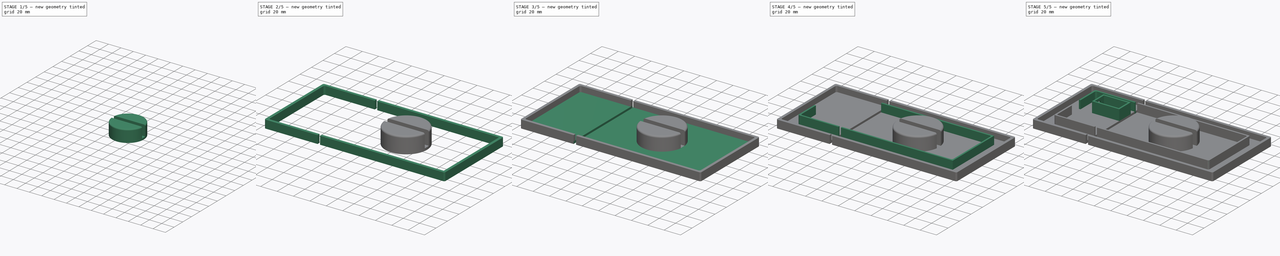
[diagram: build sequence overview — one tinted view per stage of 5, left to right]
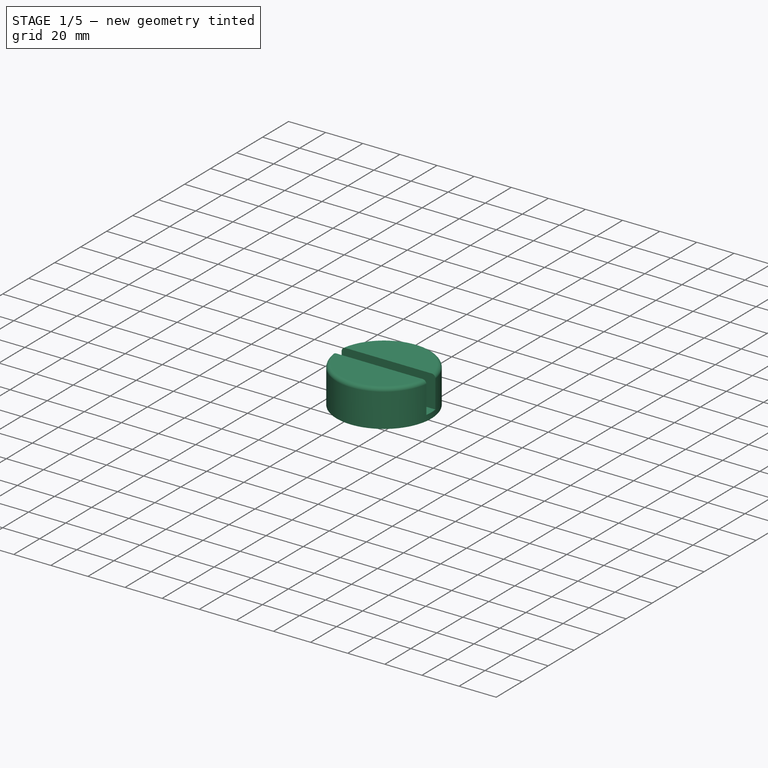
[diagram: stage 1 of 5 — iso view after this stage's code; geometry added in this stage tinted green]
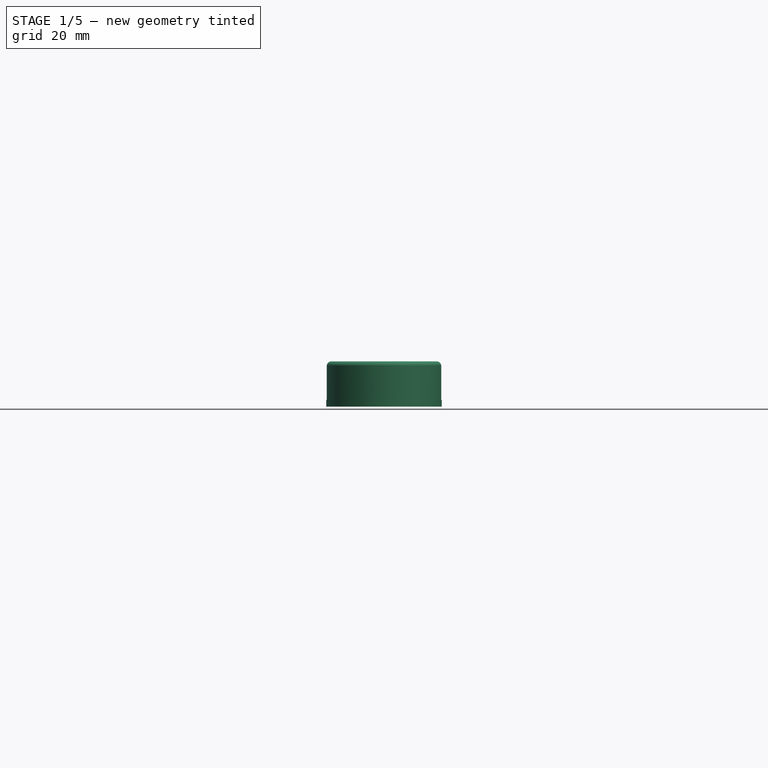
[diagram: stage 1 of 5 — front view after this stage's code; geometry added in this stage tinted green]
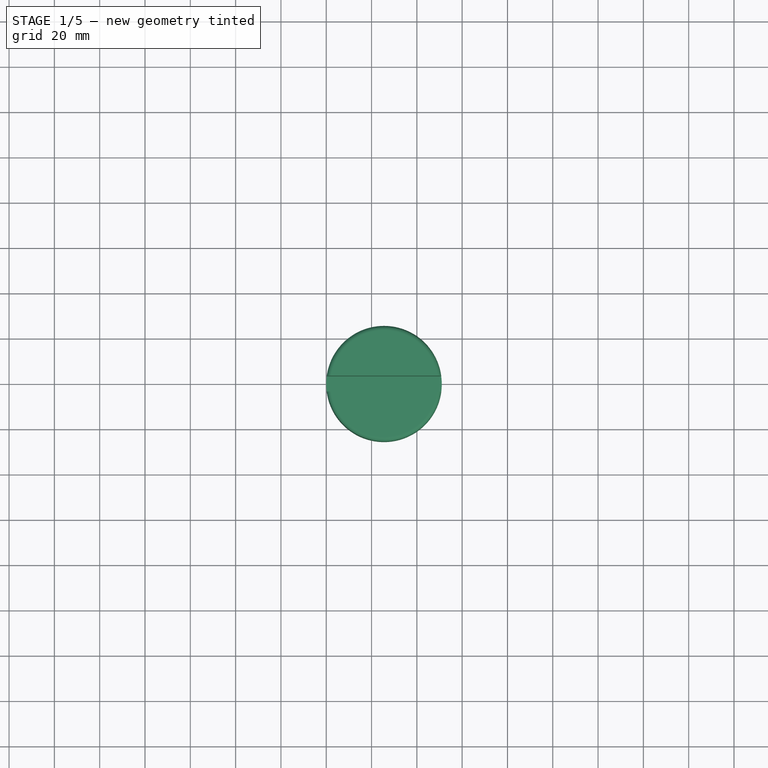
[diagram: stage 1 of 5 — top view after this stage's code; geometry added in this stage tinted green]
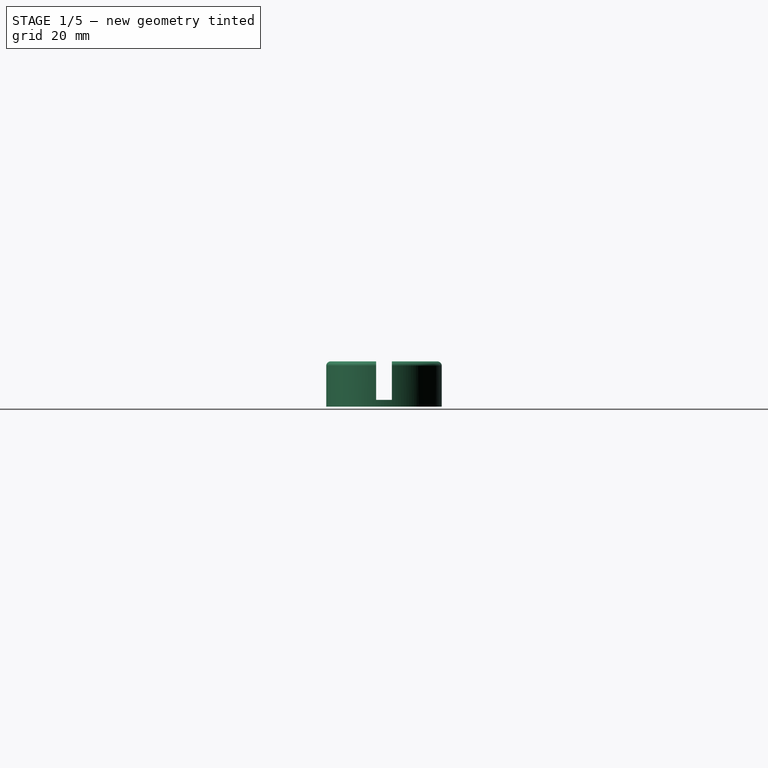
[diagram: stage 1 of 5 — right view after this stage's code; geometry added in this stage tinted green]
FCSTD DOCUMENT  (FreeCAD 0.19R24276 (Git))
Label: Rancilio_Silvia_Deckel_final
License: All rights reserved
LicenseURL: http://en.wikipedia.org/wiki/All_rights_reserved
objects: Part::Fillet×20, Sketcher::SketchObject×11, PartDesign::Pad×11, PartDesign::Body×11, Part::FeaturePython×10, Part::Cut×7, Part::Plane×3, App::DocumentObjectGroup×3, Part::Cylinder×1
note: 85 computed .brp shape members not serialized (recipe doc carries the construction recipe); baked Part::Feature solids carry a one-line shape summary decoded from their .brp

FEATURE [App::DocumentObjectGroup] GrExplode_Slice002  label="Exploded Slice002"
  Group = -> [Slice002_child0,Slice002_child1,Slice002_child2]
FEATURE [Sketcher::SketchObject] Sketch004
  FullyConstrained = false
  MapMode = 5
  Support = -> [XY_Plane006]
  sketch-geometry (4):
    g0: LineSegment StartX=-62.2277 StartY=3.5 StartZ=0 EndX=78.4721 EndY=3.5 EndZ=0
    g1: LineSegment StartX=78.4721 StartY=3.5 StartZ=0 EndX=78.4721 EndY=-3.5 EndZ=0
    g2: LineSegment StartX=78.4721 StartY=-3.5 StartZ=0 EndX=-62.2277 EndY=-3.5 EndZ=0
    g3: LineSegment StartX=-62.2277 StartY=-3.5 StartZ=0 EndX=-62.2277 EndY=3.5 EndZ=0
  constraints (9):
    c: Coincident(g0,g1)
    c: Coincident(g1,g2)
    c: Coincident(g2,g3)
    c: Coincident(g3,g0)
    c: Horizontal(g0)
    c: Horizontal(g2)
    c: Vertical(g1)
    c: Symmetric(g2,g0,g-1)
    c: DistanceY(g3,g3) = 7
FEATURE [Sketcher::SketchObject] Sketch005
  FullyConstrained = true
  MapMode = 5
  Support = -> [XY_Plane005]
  sketch-geometry (1):
    g0: Circle CenterX=0 CenterY=0 CenterZ=0 NormalX=0 NormalY=0 NormalZ=1 AngleXU=0 Radius=22
  constraints (2):
    c: Coincident(g0,g-1)
    c: Radius(g0) = 22
FEATURE [Sketcher::SketchObject] Sketch006
  FullyConstrained = true
  MapMode = 5
  Support = -> [XY_Plane007]
  sketch-geometry (4):
    g0: LineSegment StartX=-50 StartY=5 StartZ=0 EndX=50 EndY=5 EndZ=0
    g1: LineSegment StartX=50 StartY=5 StartZ=0 EndX=50 EndY=-5 EndZ=0
    g2: LineSegment StartX=50 StartY=-5 StartZ=0 EndX=-50 EndY=-5 EndZ=0
    g3: LineSegment StartX=-50 StartY=-5 StartZ=0 EndX=-50 EndY=5 EndZ=0
  constraints (10):
    c: Coincident(g0,g1)
    c: Coincident(g1,g2)
    c: Coincident(g2,g3)
    c: Coincident(g3,g0)
    c: Horizontal(g2)
    c: Vertical(g1)
    c: Symmetric(g0,g0,g-2)
    c: Symmetric(g0,g2,g-1)
    c: DistanceY(g3,g3) = 10
    c: DistanceX(g0,g0) = 100
FEATURE [Sketcher::SketchObject] Sketch007
  FullyConstrained = true
  MapMode = 5
  Support = -> [XY_Plane004]
  sketch-geometry (1):
    g0: Circle CenterX=0 CenterY=0 CenterZ=0 NormalX=0 NormalY=0 NormalZ=1 AngleXU=0 Radius=25.5
  constraints (2):
    c: Coincident(g0,g-1)
    c: Radius(g0) = 25.5
FEATURE [PartDesign::Pad] Pad004
  Direction = (1,1,1)
  Length = 20
  Length2 = 100
  Profile = -> Sketch007
  Type = 0
FEATURE [PartDesign::Pad] Pad005
  Direction = (1,1,1)
  Length = 20
  Length2 = 100
  Profile = -> Sketch006
  Type = 0
FEATURE [PartDesign::Pad] Pad006
  Direction = (1,1,1)
  Length = 17
  Length2 = 100
  Profile = -> Sketch005
  Type = 0
FEATURE [PartDesign::Body] Body004
  Group = -> [Sketch006,Pad005]
  Origin = -> Origin006
  Tip = -> Pad005
FEATURE [PartDesign::Body] Body005
  Group = -> [Sketch005,Pad006]
  Origin = -> Origin004
  Tip = -> Pad006
FEATURE [Part::Cut] Cut001
  Base = -> Body005
  Tool = -> Body004
FEATURE [PartDesign::Body] Body006
  Group = -> [Sketch007,Pad004]
  Origin = -> Origin007
  Tip = -> Pad004
FEATURE [Part::Cut] Cut002
  Base = -> Body006
  Tool = -> Cut001
FEATURE [PartDesign::Pad] Pad007
  Direction = (1,1,1)
  Length = 17
  Length2 = 100
  Profile = -> Sketch004
  Type = 0
FEATURE [PartDesign::Body] Body007
  Group = -> [Sketch004,Pad007]
  Origin = -> Origin005
  Placement = pos=(0,0,3) rot=(0,0,1;0rad)
  Tip = -> Pad007
FEATURE [Part::Cut] Cut003
  Base = -> Cut002
  Placement = pos=(25.5,0,0) rot=(0,0,1;0rad)
  Tool = -> Body007
FEATURE [Part::Fillet] Fillet014
  Base = -> Cut003
  Edges = 1 edges r=2: [Edge5]
FEATURE [Part::Fillet] Fillet015
  Base = -> Fillet014
  Edges = 1 edges r=2: [Edge7]
FEATURE [Part::Fillet] Fillet016
  Base = -> Fillet015
  Edges = 1 edges r=2: [Edge27]
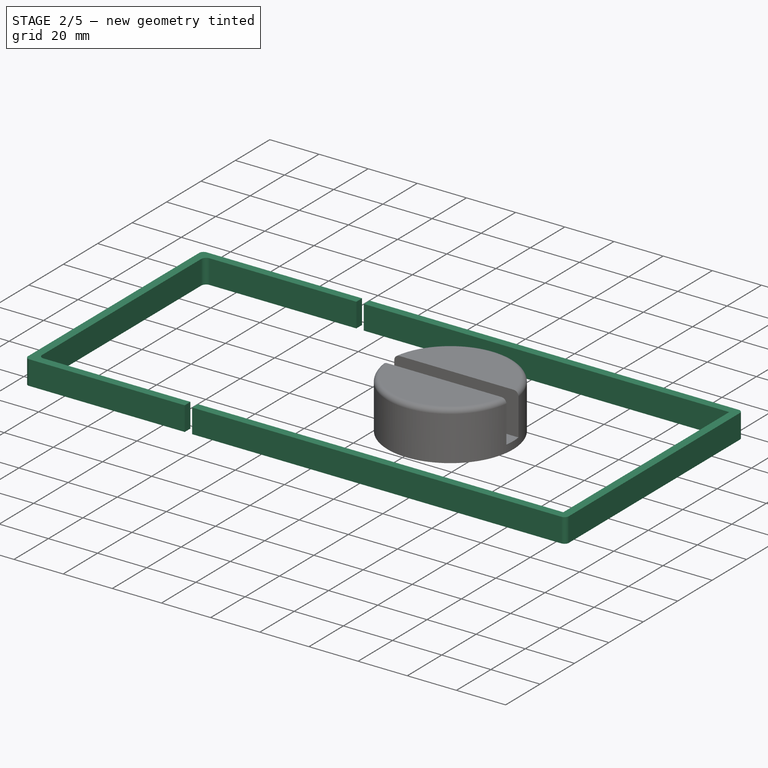
[diagram: stage 2 of 5 — iso view after this stage's code; geometry added in this stage tinted green]
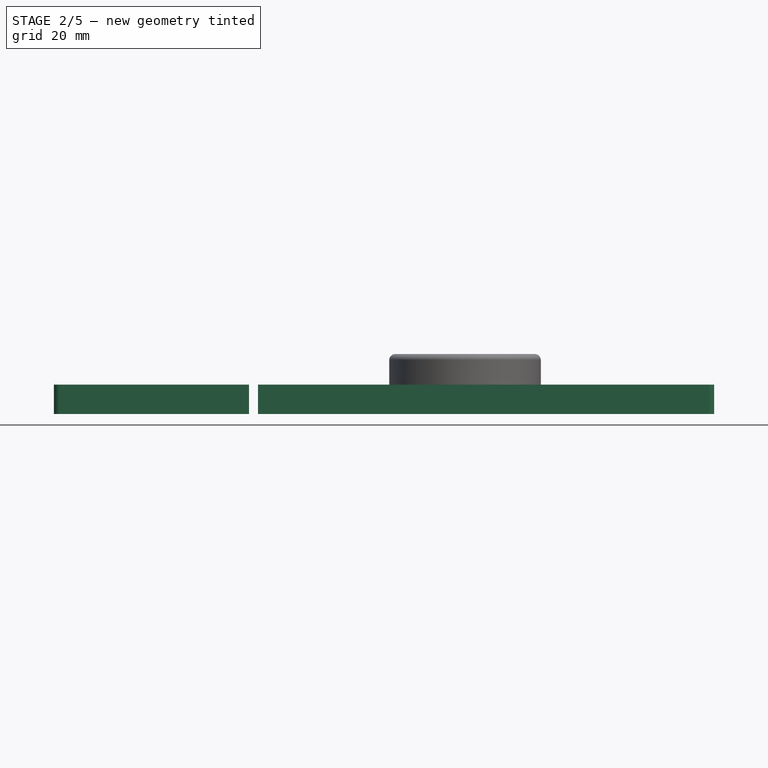
[diagram: stage 2 of 5 — front view after this stage's code; geometry added in this stage tinted green]
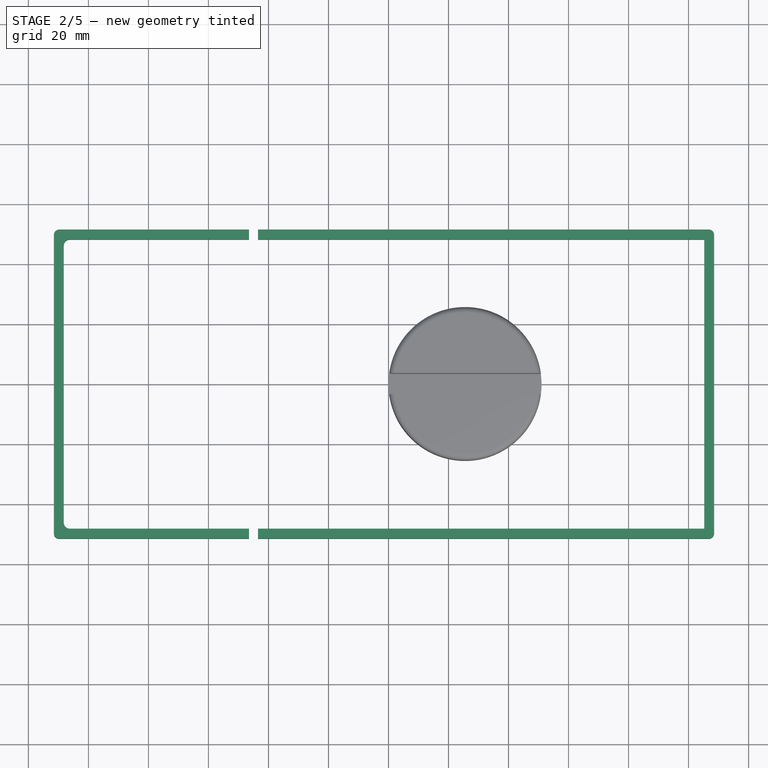
[diagram: stage 2 of 5 — top view after this stage's code; geometry added in this stage tinted green]
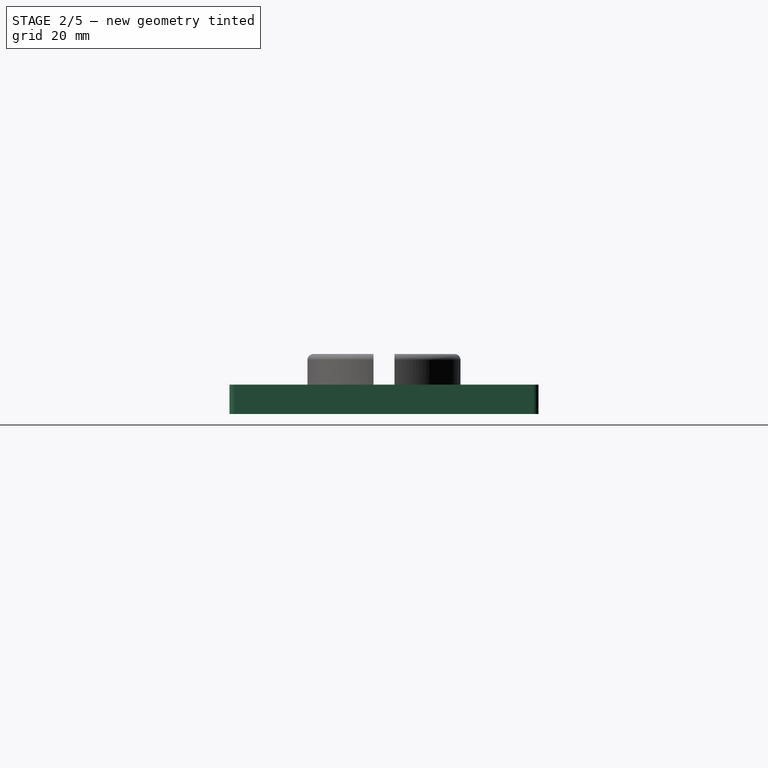
[diagram: stage 2 of 5 — right view after this stage's code; geometry added in this stage tinted green]
FEATURE [PartDesign::Body] Body
  Group = -> [Sketch,Pad]
  Origin = -> Origin
  Tip = -> Pad
FEATURE [Sketcher::SketchObject] Sketch001
  FullyConstrained = true
  MapMode = 5
  Support = -> [XY_Plane001]
  sketch-geometry (8):
    g0: LineSegment StartX=-108.5 StartY=51.5 StartZ=0 EndX=108.5 EndY=51.5 EndZ=0
    g1: LineSegment StartX=108.5 StartY=51.5 StartZ=0 EndX=108.5 EndY=-51.5 EndZ=0
    g2: LineSegment StartX=108.5 StartY=-51.5 StartZ=0 EndX=-108.5 EndY=-51.5 EndZ=0
    g3: LineSegment StartX=-108.5 StartY=-51.5 StartZ=0 EndX=-108.5 EndY=51.5 EndZ=0
    g4: LineSegment StartX=-105.2 StartY=48.2 StartZ=0 EndX=105.2 EndY=48.2 EndZ=0
    g5: LineSegment StartX=105.2 StartY=48.2 StartZ=0 EndX=105.2 EndY=-48.2 EndZ=0
    g6: LineSegment StartX=105.2 StartY=-48.2 StartZ=0 EndX=-105.2 EndY=-48.2 EndZ=0
    g7: LineSegment StartX=-105.2 StartY=-48.2 StartZ=0 EndX=-105.2 EndY=48.2 EndZ=0
  constraints (20):
    c: Coincident(g0,g1)
    c: Coincident(g1,g2)
    c: Coincident(g2,g3)
    c: Coincident(g3,g0)
    c: Horizontal(g2)
    c: Vertical(g3)
    c: Symmetric(g0,g0,g-2)
    c: Symmetric(g0,g1,g-1)
    c: DistanceY(g1,g1) = 103
    c: DistanceX(g0,g0) = 217
    c: Coincident(g4,g5)
    c: Coincident(g5,g6)
    c: Coincident(g6,g7)
    c: Coincident(g7,g4)
    c: Horizontal(g6)
    c: Vertical(g7)
    c: Symmetric(g4,g4,g-2)
    c: Symmetric(g5,g4,g-1)
    c: DistanceX(g4,g4) = 210.4
    c: DistanceY(g5,g5) = 96.4
FEATURE [PartDesign::Pad] Pad001
  Direction = (1,1,1)
  Length = 9.8
  Length2 = 100
  Profile = -> Sketch001
  Type = 0
FEATURE [Part::FeaturePython] Slice001  # WARN: FeaturePython — macro-defined, semantics opaque (R4)
  Base = -> Body001
  Mode = 1
  Tolerance = 0
  Tools = -> [Plane001]
FEATURE [Part::FeaturePython] Slice001_child0  label="Slice001.0"  # WARN: FeaturePython — macro-defined, semantics opaque (R4)
  Base = -> Slice001
  FilterType = 1
  Invert = false
  OverrideMaxVal = 0
  Placement = pos=(-3,0,0) rot=(0,0,1;0rad)
  WindowFrom = 80
  WindowTo = 100
  items = 0
FEATURE [Part::FeaturePython] Slice001_child1  label="Slice001.1"  # WARN: FeaturePython — macro-defined, semantics opaque (R4)
  Base = -> Slice001
  FilterType = 1
  Invert = false
  OverrideMaxVal = 0
  WindowFrom = 80
  WindowTo = 100
  items = 1
FEATURE [Part::Fillet] Fillet008
  Base = -> Slice001_child1
  Edges = 2 edges r=1.8: [Edge2,Edge12]
FEATURE [Part::Fillet] Fillet010
  Base = -> Slice001_child0
  Edges = 2 edges r=1.8: [Edge4,Edge20]
FEATURE [Part::Fillet] Fillet013
  Base = -> Fillet010
  Edges = 2 edges r=2: [Edge29,Edge30]
FEATURE [Part::Fillet] Fillet017
  Base = -> Fillet016
  Edges = 1 edges r=2: [Edge24]
FEATURE [Part::Fillet] Fillet018
  Base = -> Fillet017
  Edges = 1 edges r=2: [Edge27]
FEATURE [Part::Fillet] Fillet019
  Base = -> Fillet018
  Edges = 1 edges r=2: [Edge30]
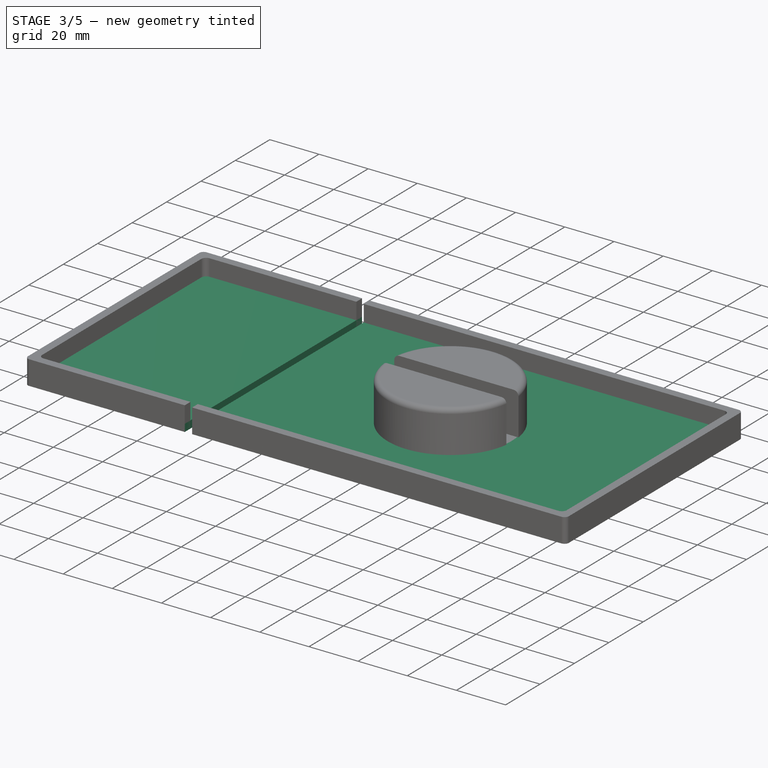
[diagram: stage 3 of 5 — iso view after this stage's code; geometry added in this stage tinted green]
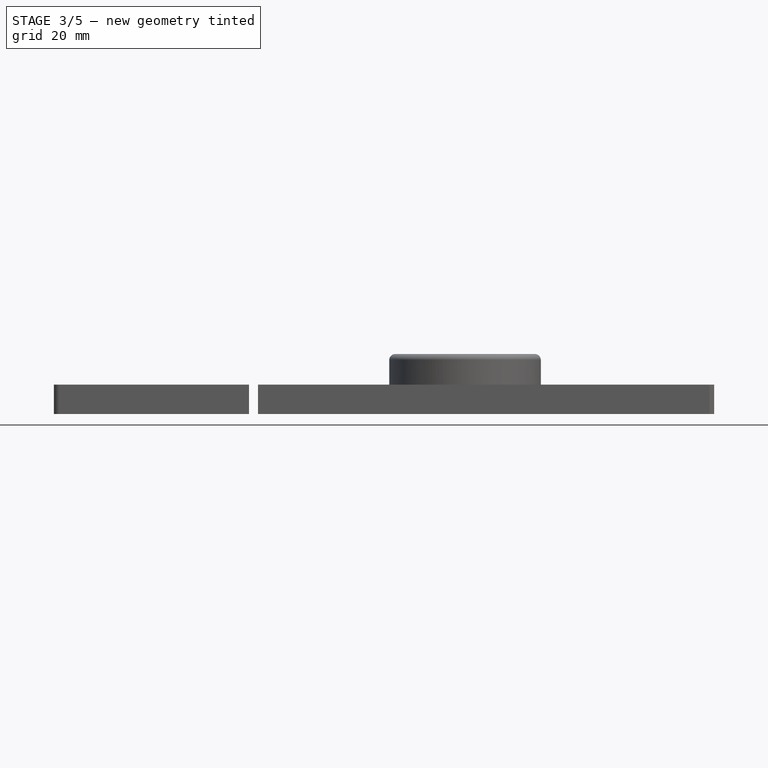
[diagram: stage 3 of 5 — front view after this stage's code; geometry added in this stage tinted green]
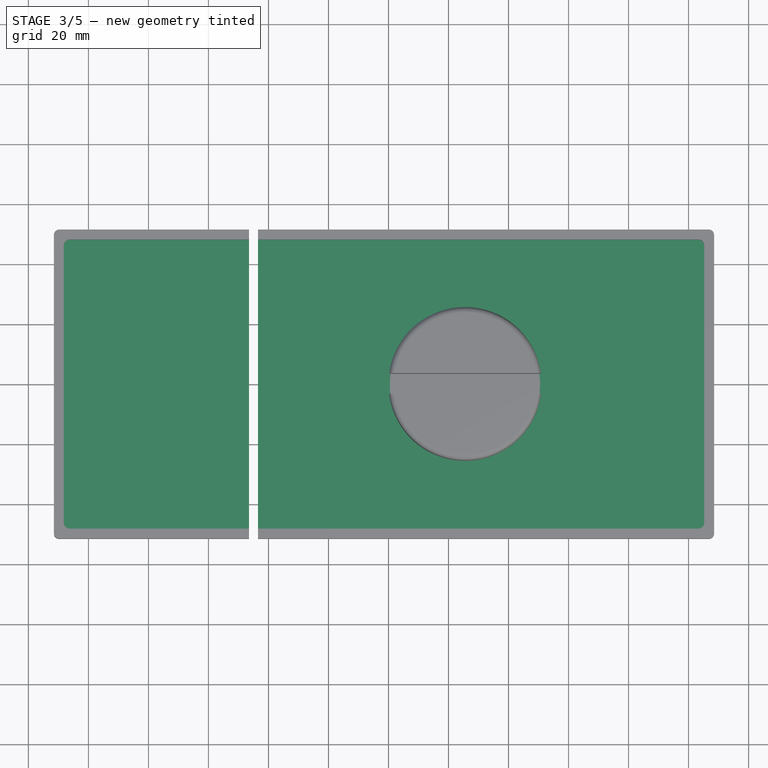
[diagram: stage 3 of 5 — top view after this stage's code; geometry added in this stage tinted green]
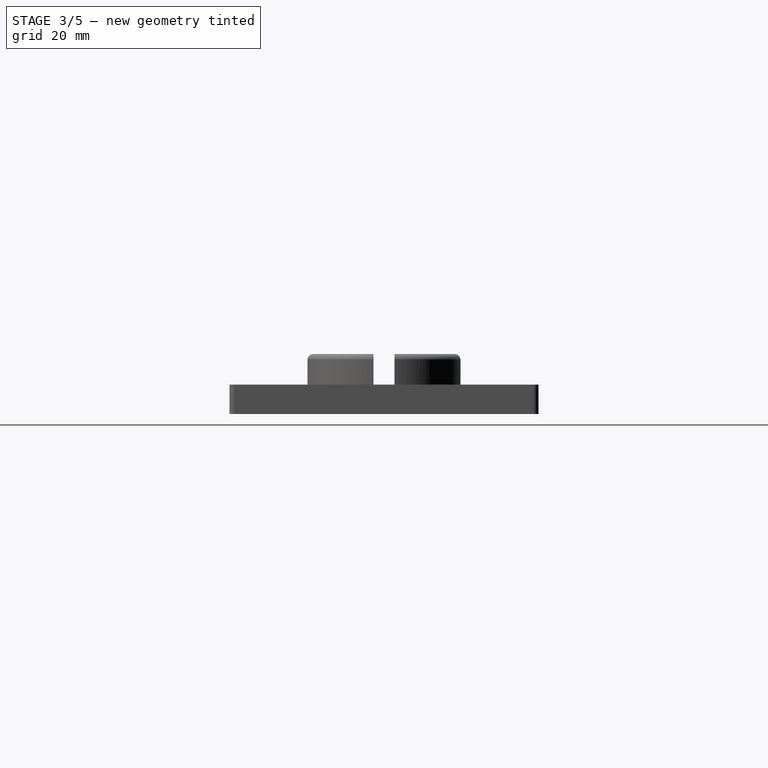
[diagram: stage 3 of 5 — right view after this stage's code; geometry added in this stage tinted green]
FEATURE [Sketcher::SketchObject] Sketch
  FullyConstrained = true
  MapMode = 5
  Support = -> [XY_Plane]
  sketch-geometry (4):
    g0: LineSegment StartX=-107.5 StartY=51.5 StartZ=0 EndX=107.5 EndY=51.5 EndZ=0
    g1: LineSegment StartX=107.5 StartY=51.5 StartZ=0 EndX=107.5 EndY=-51.5 EndZ=0
    g2: LineSegment StartX=107.5 StartY=-51.5 StartZ=0 EndX=-107.5 EndY=-51.5 EndZ=0
    g3: LineSegment StartX=-107.5 StartY=-51.5 StartZ=0 EndX=-107.5 EndY=51.5 EndZ=0
  constraints (10):
    c: Coincident(g0,g1)
    c: Coincident(g1,g2)
    c: Coincident(g2,g3)
    c: Coincident(g3,g0)
    c: Horizontal(g2)
    c: Vertical(g3)
    c: Symmetric(g0,g0,g-2)
    c: Symmetric(g0,g1,g-1)
    c: DistanceY(g1,g1) = 103
    c: DistanceX(g0,g0) = 215
FEATURE [PartDesign::Pad] Pad
  Direction = (1,1,1)
  Length = 3
  Length2 = 100
  Profile = -> Sketch
  Type = 0
FEATURE [Part::Plane] Plane  label="Ebene"
  AttacherType = Attacher::AttachEngine3D
  Length = 100
  Placement = pos=(-43.5,-71,39) rot=(0,1,0;1.5708rad)
  Width = 140
FEATURE [Part::Plane] Plane001  label="Ebene001"
  AttacherType = Attacher::AttachEngine3D
  Length = 100
  Placement = pos=(-43.5,-71,39) rot=(0,1,0;1.5708rad)
  Width = 140
FEATURE [Part::Plane] Plane002  label="Ebene002"
  AttacherType = Attacher::AttachEngine3D
  Length = 100
  Placement = pos=(-43.5,-71,39) rot=(0,1,0;1.5708rad)
  Width = 140
FEATURE [Part::FeaturePython] Slice  # WARN: FeaturePython — macro-defined, semantics opaque (R4)
  Base = -> Body
  Mode = 1
  Tolerance = 0
  Tools = -> [Plane]
FEATURE [Part::FeaturePython] Slice_child0  label="Slice.0"  # WARN: FeaturePython — macro-defined, semantics opaque (R4)
  Base = -> Slice
  FilterType = 1
  Invert = false
  OverrideMaxVal = 0
  Placement = pos=(-3,0,0) rot=(0,0,1;0rad)
  WindowFrom = 80
  WindowTo = 100
  items = 0
FEATURE [Part::FeaturePython] Slice_child1  label="Slice.1"  # WARN: FeaturePython — macro-defined, semantics opaque (R4)
  Base = -> Slice
  FilterType = 1
  Invert = false
  OverrideMaxVal = 0
  WindowFrom = 80
  WindowTo = 100
  items = 1
FEATURE [Sketcher::SketchObject] Sketch008
  FullyConstrained = false
  MapMode = 5
  Support = -> [XY_Plane008]
  sketch-geometry (1):
    g0: Circle CenterX=25.4804 CenterY=0 CenterZ=0 NormalX=0 NormalY=0 NormalZ=1 AngleXU=0 Radius=25
  constraints (2):
    c: PointOnObject(g0,g-1)
    c: Radius(g0) = 25
FEATURE [PartDesign::Pad] Pad008
  Direction = (1,1,1)
  Length = 10
  Length2 = 100
  Profile = -> Sketch008
  Type = 0
FEATURE [PartDesign::Body] Body008
  Group = -> [Sketch008,Pad008]
  Origin = -> Origin008
  Placement = pos=(0,0,-3) rot=(0,0,1;0rad)
  Tip = -> Pad008
FEATURE [Part::Cut] Cut004
  Base = -> Slice_child1
  Tool = -> Body008
FEATURE [Part::Fillet] Fillet009
  Base = -> Cut004
  Edges = 2 edges r=1.8: [Edge2,Edge9]
FEATURE [Part::Fillet] Fillet011
  Base = -> Slice_child0
  Edges = 2 edges r=1.8: [Edge4,Edge12]
FEATURE [Part::Fillet] Fillet012
  Base = -> Fillet008
  Edges = 2 edges r=2: [Edge29,Edge30]
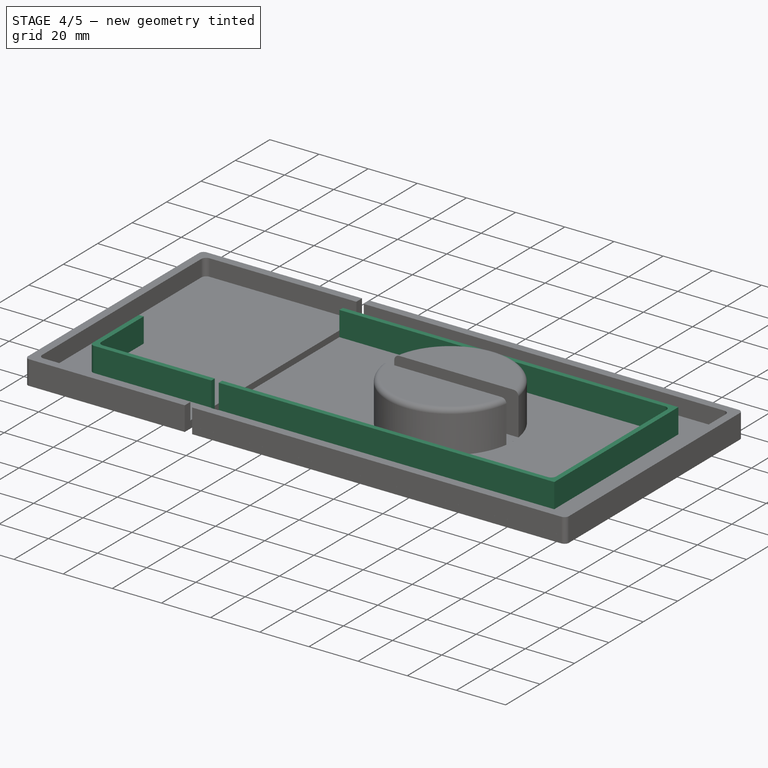
[diagram: stage 4 of 5 — iso view after this stage's code; geometry added in this stage tinted green]
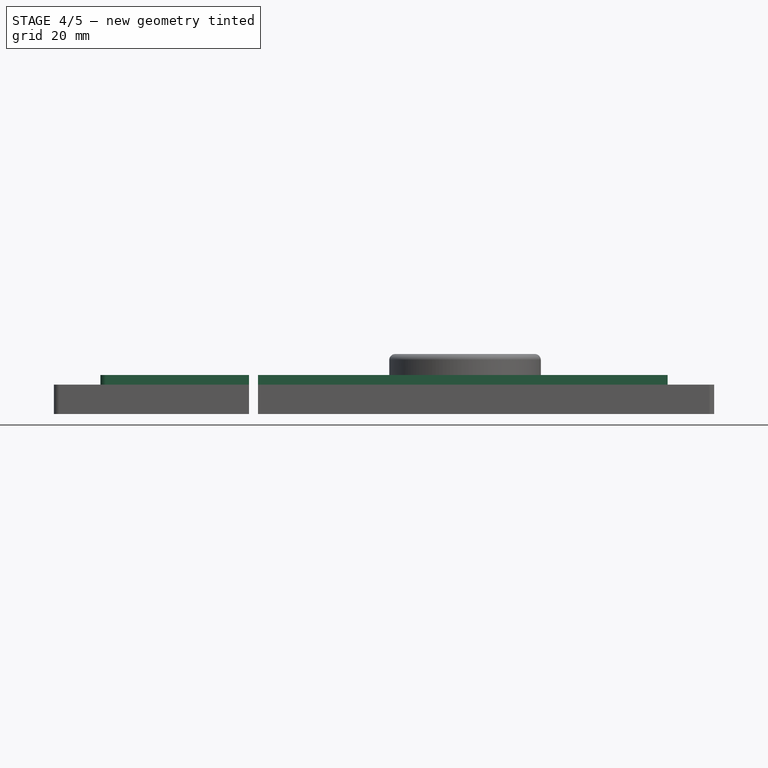
[diagram: stage 4 of 5 — front view after this stage's code; geometry added in this stage tinted green]
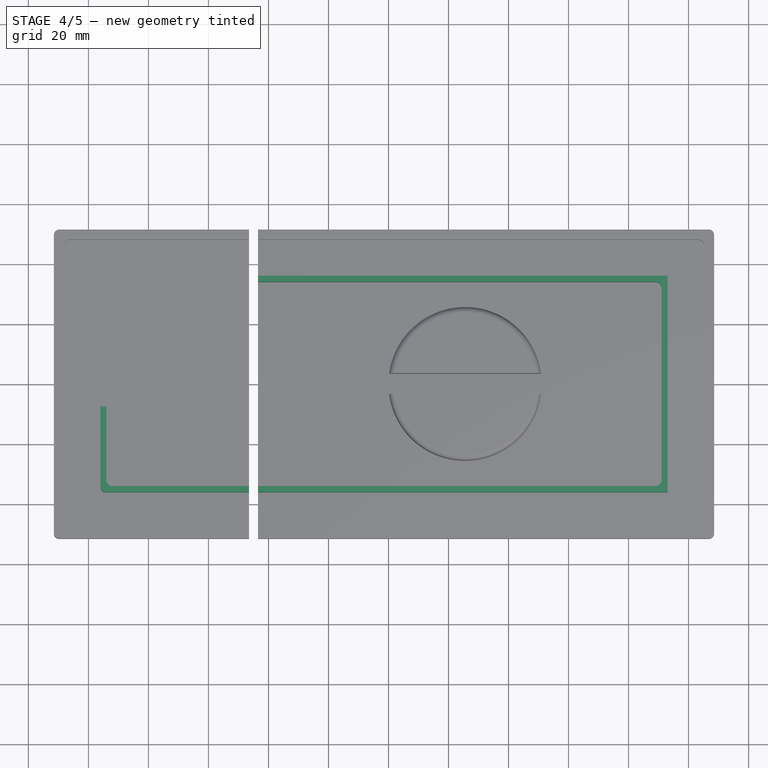
[diagram: stage 4 of 5 — top view after this stage's code; geometry added in this stage tinted green]
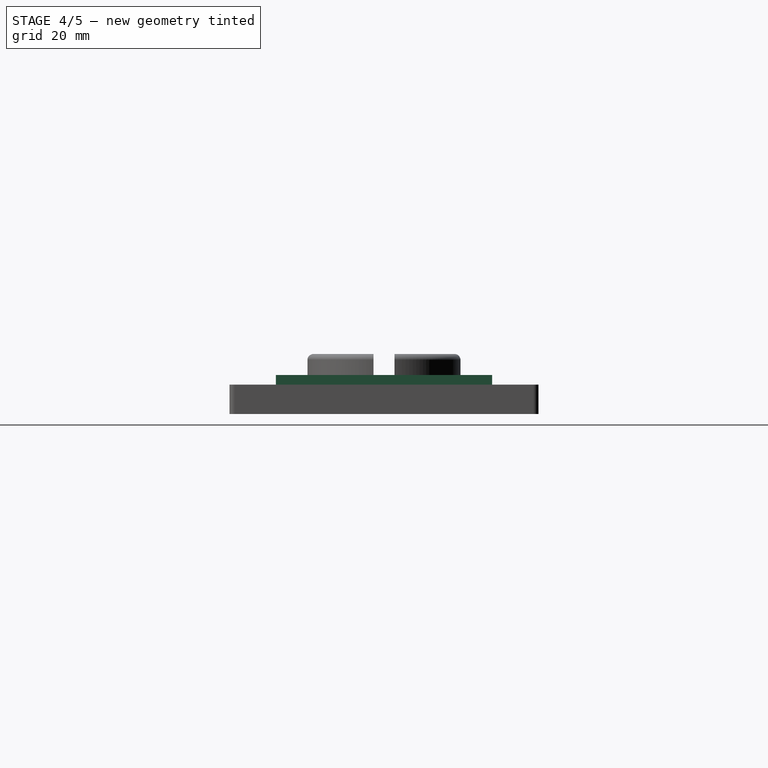
[diagram: stage 4 of 5 — right view after this stage's code; geometry added in this stage tinted green]
FEATURE [PartDesign::Body] Body001
  Group = -> [Sketch001,Pad001]
  Origin = -> Origin001
  Tip = -> Pad001
FEATURE [Sketcher::SketchObject] Sketch002
  FullyConstrained = true
  MapMode = 5
  Support = -> [XY_Plane002]
  sketch-geometry (8):
    g0: LineSegment StartX=-93 StartY=36.05 StartZ=0 EndX=93 EndY=36.05 EndZ=0
    g1: LineSegment StartX=93 StartY=36.05 StartZ=0 EndX=93 EndY=-36.05 EndZ=0
    g2: LineSegment StartX=93 StartY=-36.05 StartZ=0 EndX=-93 EndY=-36.05 EndZ=0
    g3: LineSegment StartX=-93 StartY=-36.05 StartZ=0 EndX=-93 EndY=36.05 EndZ=0
    g4: LineSegment StartX=-91 StartY=34.05 StartZ=0 EndX=91 EndY=34.05 EndZ=0
    g5: LineSegment StartX=91 StartY=34.05 StartZ=0 EndX=91 EndY=-34.05 EndZ=0
    g6: LineSegment StartX=91 StartY=-34.05 StartZ=0 EndX=-91 EndY=-34.05 EndZ=0
    g7: LineSegment StartX=-91 StartY=-34.05 StartZ=0 EndX=-91 EndY=34.05 EndZ=0
  constraints (20):
    c: Coincident(g0,g1)
    c: Coincident(g1,g2)
    c: Coincident(g2,g3)
    c: Coincident(g3,g0)
    c: Horizontal(g2)
    c: Vertical(g1)
    c: Coincident(g4,g5)
    c: Coincident(g5,g6)
    c: Coincident(g6,g7)
    c: Coincident(g7,g4)
    c: Horizontal(g6)
    c: Vertical(g7)
    c: Symmetric(g4,g4,g-2)
    c: Symmetric(g4,g5,g-1)
    c: Symmetric(g0,g0,g-2)
    c: Symmetric(g0,g2,g-1)
    c: DistanceX(g0,g0) = 186
    c: DistanceY(g1,g1) = 72.1
    c: DistanceX(g4,g4) = 182
    c: DistanceY(g5,g5) = 68.1
FEATURE [PartDesign::Pad] Pad002
  Direction = (1,1,1)
  Length = 13
  Length2 = 100
  Profile = -> Sketch002
  Type = 0
FEATURE [PartDesign::Body] Body002
  Group = -> [Sketch002,Pad002]
  Origin = -> Origin002
  Tip = -> Pad002
FEATURE [Sketcher::SketchObject] Sketch003
  FullyConstrained = false
  MapMode = 5
  Support = -> [XY_Plane003]
  sketch-geometry (4):
    g0: LineSegment StartX=-139.862 StartY=7.5 StartZ=0 EndX=-121.454 EndY=7.5 EndZ=0
    g1: LineSegment StartX=-121.454 StartY=7.5 StartZ=0 EndX=-121.454 EndY=-7.5 EndZ=0
    g2: LineSegment StartX=-121.454 StartY=-7.5 StartZ=0 EndX=-139.862 EndY=-7.5 EndZ=0
    g3: LineSegment StartX=-139.862 StartY=-7.5 StartZ=0 EndX=-139.862 EndY=7.5 EndZ=0
  constraints (9):
    c: Coincident(g0,g1)
    c: Coincident(g1,g2)
    c: Coincident(g2,g3)
    c: Coincident(g3,g0)
    c: Horizontal(g0)
    c: Horizontal(g2)
    c: Vertical(g1)
    c: Symmetric(g0,g2,g-1)
    c: DistanceY(g3,g3) = 15
FEATURE [PartDesign::Pad] Pad003
  Direction = (1,1,1)
  Length = 20
  Length2 = 100
  Profile = -> Sketch003
  Type = 0
FEATURE [PartDesign::Body] Body003
  Group = -> [Sketch003,Pad003]
  Origin = -> Origin003
  Placement = pos=(39,0,0) rot=(0,0,1;0rad)
  Tip = -> Pad003
FEATURE [Part::Cut] Cut
  Base = -> Body002
  Tool = -> Body003
FEATURE [App::DocumentObjectGroup] GrExplode_Slice001  label="Exploded Slice001"
  Group = -> [Slice001_child0,Slice001_child1]
FEATURE [Part::FeaturePython] Slice002  # WARN: FeaturePython — macro-defined, semantics opaque (R4)
  Base = -> Cut
  Mode = 1
  Tolerance = 0
  Tools = -> [Plane002]
FEATURE [Part::FeaturePython] Slice002_child1  label="Slice002.1"  # WARN: FeaturePython — macro-defined, semantics opaque (R4)
  Base = -> Slice002
  FilterType = 1
  Invert = false
  OverrideMaxVal = 0
  WindowFrom = 80
  WindowTo = 100
  items = 1
FEATURE [Part::FeaturePython] Slice002_child2  label="Slice002.2"  # WARN: FeaturePython — macro-defined, semantics opaque (R4)
  Base = -> Slice002
  FilterType = 1
  Invert = false
  OverrideMaxVal = 0
  Placement = pos=(-3,0,0) rot=(0,0,1;0rad)
  WindowFrom = 80
  WindowTo = 100
  items = 2
FEATURE [Part::Fillet] Fillet002
  Base = -> Slice002_child1
  Edges = 1 edges r=2: [Edge22]
FEATURE [Part::Fillet] Fillet003
  Base = -> Fillet002
  Edges = 1 edges r=2: [Edge10]
FEATURE [Part::Fillet] Fillet006
  Base = -> Slice002_child2
  Edges = 1 edges r=1.8: [Edge17]
FEATURE [Part::Fillet] Fillet007
  Base = -> Fillet006
  Edges = 1 edges r=2: [Edge18]
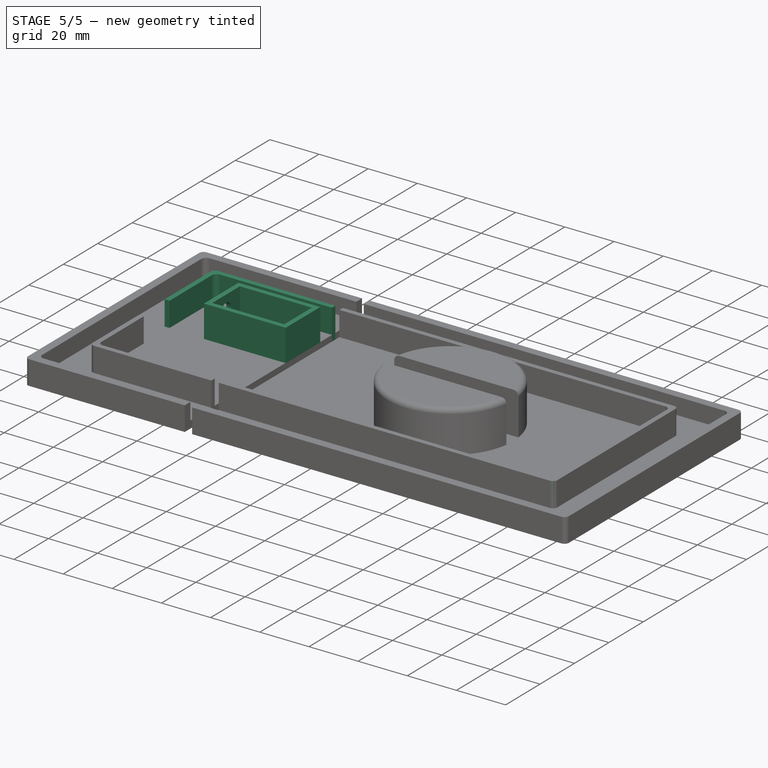
[diagram: stage 5 of 5 — iso view after this stage's code; geometry added in this stage tinted green]
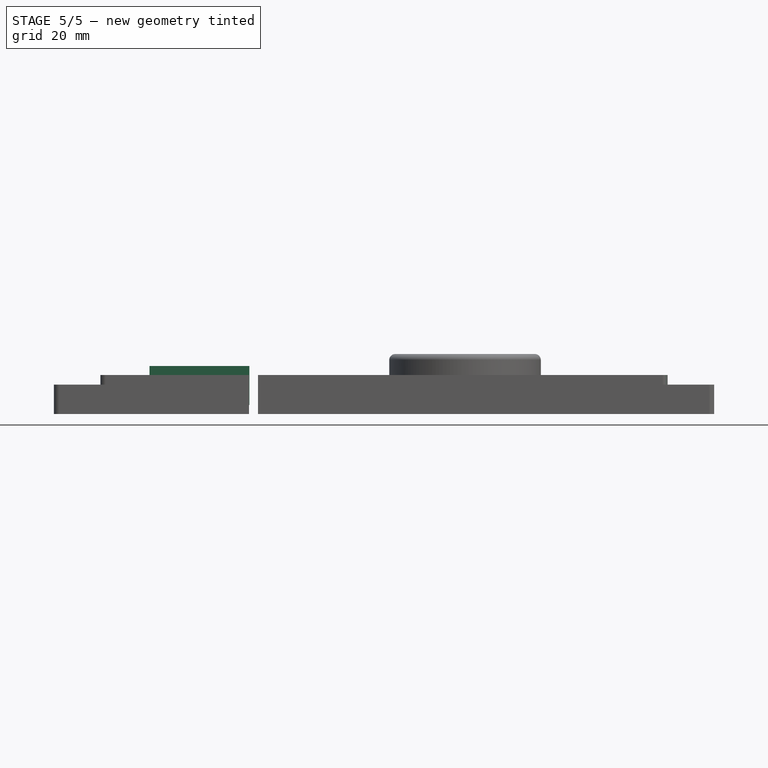
[diagram: stage 5 of 5 — front view after this stage's code; geometry added in this stage tinted green]
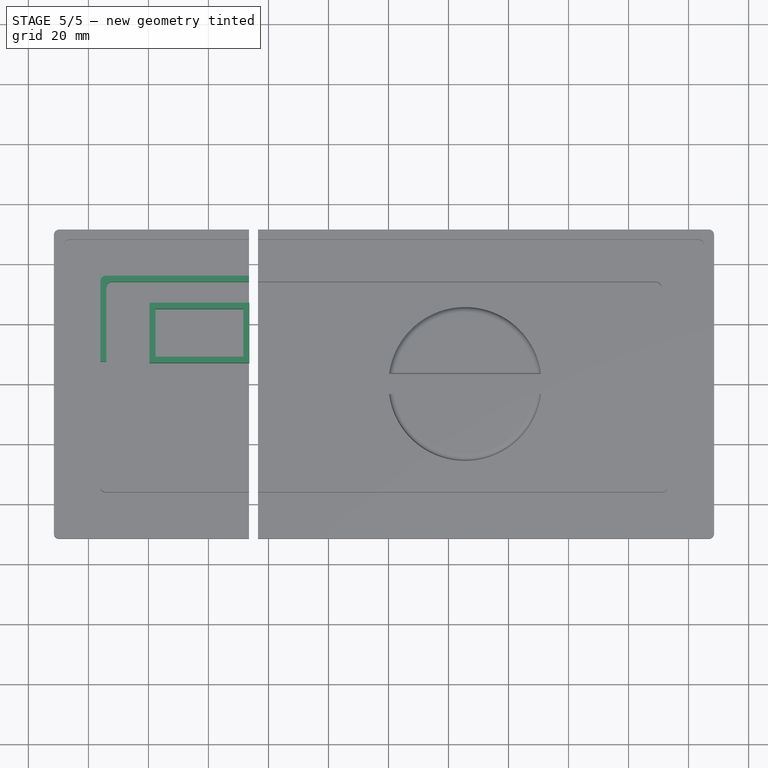
[diagram: stage 5 of 5 — top view after this stage's code; geometry added in this stage tinted green]
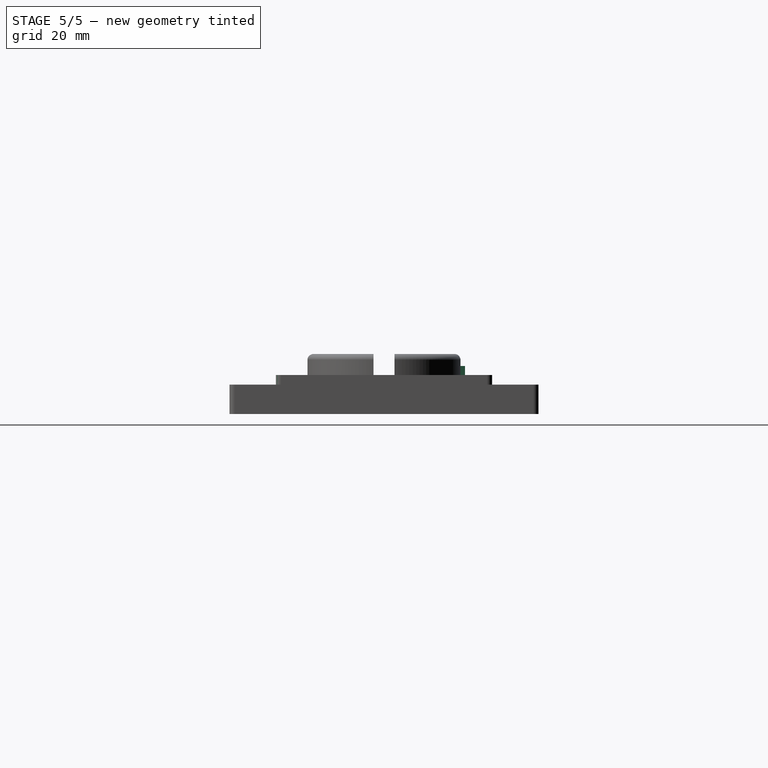
[diagram: stage 5 of 5 — right view after this stage's code; geometry added in this stage tinted green]
FEATURE [Part::FeaturePython] Slice002_child0  label="Slice002.0"  # WARN: FeaturePython — macro-defined, semantics opaque (R4)
  Base = -> Slice002
  FilterType = 1
  Invert = false
  OverrideMaxVal = 0
  Placement = pos=(-3,0,0) rot=(0,0,1;0rad)
  WindowFrom = 80
  WindowTo = 100
  items = 0
FEATURE [App::DocumentObjectGroup] GrExplode_Slice  label="Exploded Slice"
  Group = -> [Slice_child0,Cut004]
FEATURE [Sketcher::SketchObject] Sketch009
  FullyConstrained = true
  MapMode = 5
  Support = -> [XY_Plane010]
  sketch-geometry (4):
    g0: LineSegment StartX=-14.65 StartY=8 StartZ=0 EndX=14.65 EndY=8 EndZ=0
    g1: LineSegment StartX=14.65 StartY=8 StartZ=0 EndX=14.65 EndY=-8 EndZ=0
    g2: LineSegment StartX=14.65 StartY=-8 StartZ=0 EndX=-14.65 EndY=-8 EndZ=0
    g3: LineSegment StartX=-14.65 StartY=-8 StartZ=0 EndX=-14.65 EndY=8 EndZ=0
  constraints (11):
    c: Coincident(g0,g1)
    c: Coincident(g1,g2)
    c: Coincident(g2,g3)
    c: Coincident(g3,g0)
    c: Horizontal(g0)
    c: Horizontal(g2)
    c: Vertical(g1)
    c: Vertical(g3)
    c: Symmetric(g0,g1,g-1)
    c: DistanceX(g0,g0) = 29.3
    c: DistanceY(g1,g0) = 16
FEATURE [PartDesign::Pad] Pad010
  Direction = (1,1,1)
  Length = 16
  Length2 = 100
  Profile = -> Sketch009
  Type = 0
FEATURE [PartDesign::Body] Body009  label="Body innen"
  Group = -> [Sketch009,Pad010]
  Origin = -> Origin009
  Tip = -> Pad010
FEATURE [Sketcher::SketchObject] Sketch010
  FullyConstrained = true
  MapMode = 5
  Support = -> [XY_Plane009]
  sketch-geometry (4):
    g0: LineSegment StartX=-16.65 StartY=10 StartZ=0 EndX=16.65 EndY=10 EndZ=0
    g1: LineSegment StartX=16.65 StartY=10 StartZ=0 EndX=16.65 EndY=-10 EndZ=0
    g2: LineSegment StartX=16.65 StartY=-10 StartZ=0 EndX=-16.65 EndY=-10 EndZ=0
    g3: LineSegment StartX=-16.65 StartY=-10 StartZ=0 EndX=-16.65 EndY=10 EndZ=0
  constraints (11):
    c: Coincident(g0,g1)
    c: Coincident(g1,g2)
    c: Coincident(g2,g3)
    c: Coincident(g3,g0)
    c: Horizontal(g0)
    c: Horizontal(g2)
    c: Vertical(g1)
    c: Vertical(g3)
    c: Symmetric(g0,g1,g-1)
    c: DistanceX(g0,g0) = 33.3
    c: DistanceY(g1,g0) = 20
FEATURE [PartDesign::Pad] Pad009
  Direction = (1,1,1)
  Length = 13
  Length2 = 100
  Profile = -> Sketch010
  Type = 0
FEATURE [PartDesign::Body] Body010  label="Body aussen"
  Group = -> [Sketch010,Pad009]
  Origin = -> Origin010
  Tip = -> Pad009
FEATURE [Part::Cut] Cut005
  Base = -> Body010
  Placement = pos=(-63,-21,3) rot=(0,0,1;0rad)
  Tool = -> Body009
FEATURE [Part::Cylinder] Cylinder  label="Zylinder"
  Angle = 360
  AttacherType = Attacher::AttachEngine3D
  Height = 10
  Placement = pos=(-83,-21,10) rot=(0,1,0;1.5708rad)
  Radius = 3
FEATURE [Part::Cut] Cut006
  Base = -> Cut005
  Placement = pos=(0,38,0) rot=(0,0,1;0rad)
  Tool = -> Cylinder
FEATURE [Part::Fillet] Fillet
  Base = -> Slice002_child0
  Edges = 1 edges r=2: [Edge18]
FEATURE [Part::Fillet] Fillet001
  Base = -> Fillet
  Edges = 1 edges r=1.8: [Edge17]
FEATURE [Part::Fillet] Fillet004
  Base = -> Fillet003
  Edges = 1 edges r=1.8: [Edge26]
FEATURE [Part::Fillet] Fillet005
  Base = -> Fillet004
  Edges = 1 edges r=1.8: [Edge20]
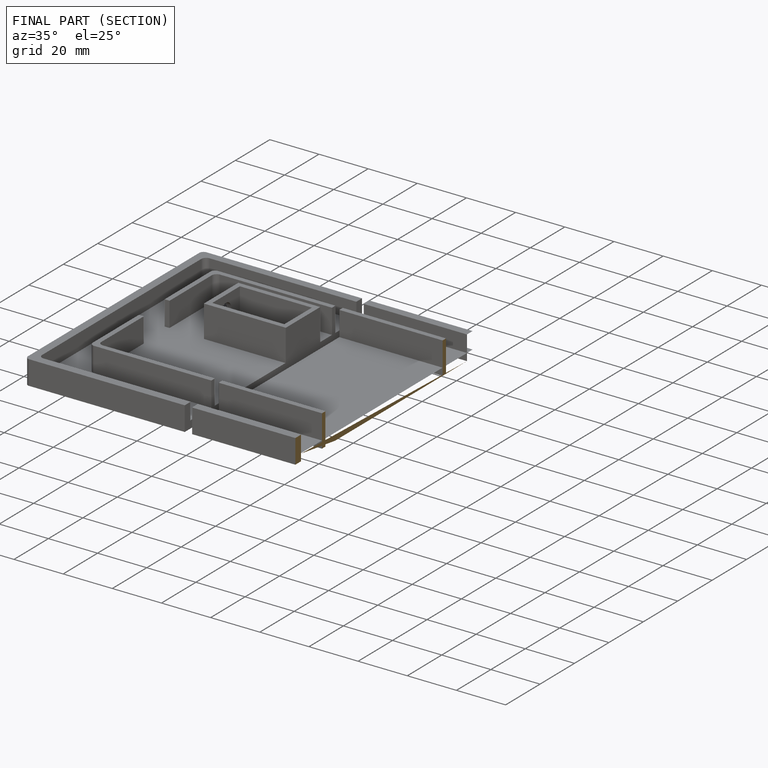
[diagram: finished part — half-section view (interior)]
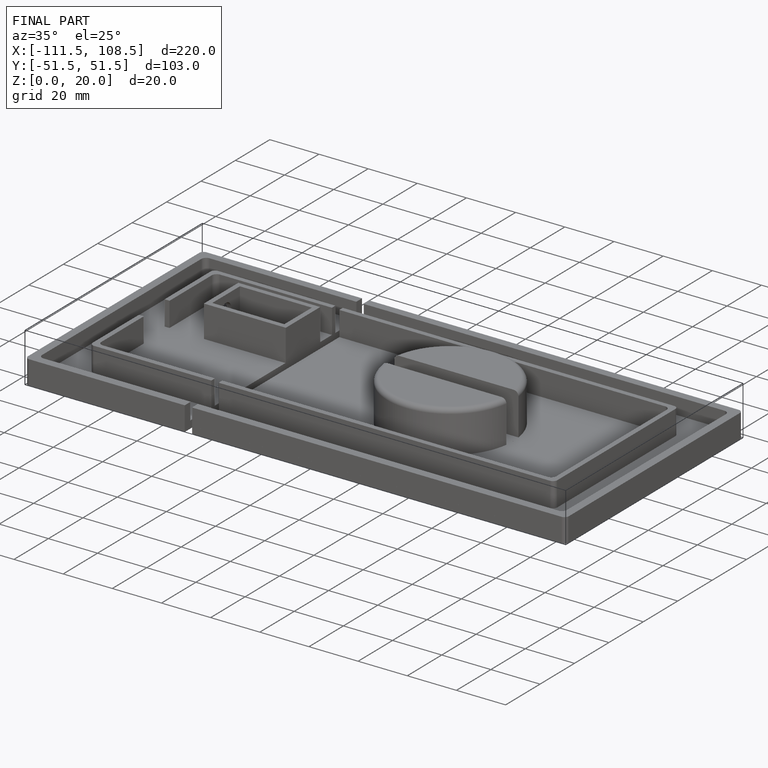
[diagram: finished part — iso view with bounding-box wireframe]
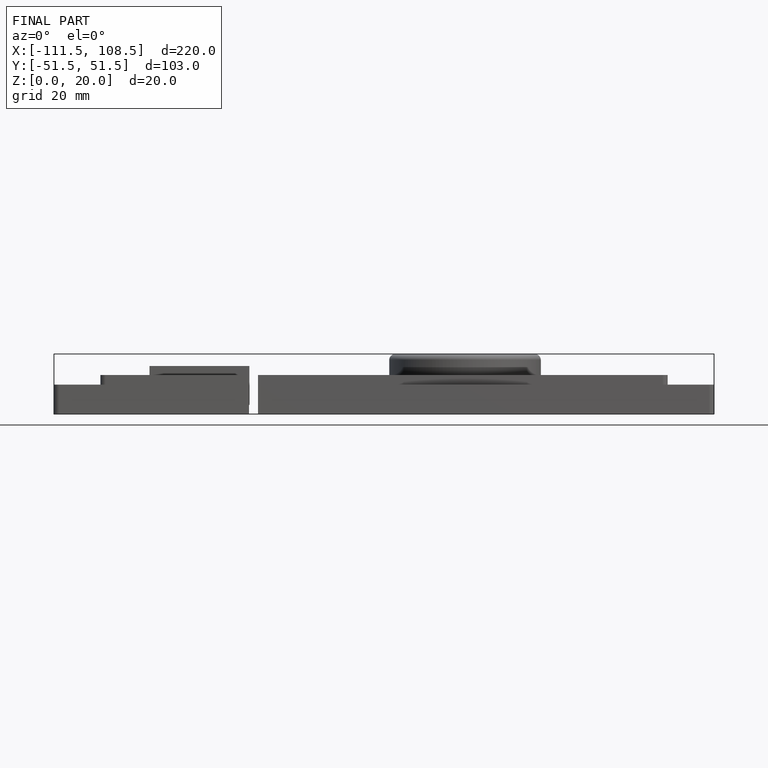
[diagram: finished part — front view with bounding-box wireframe]
